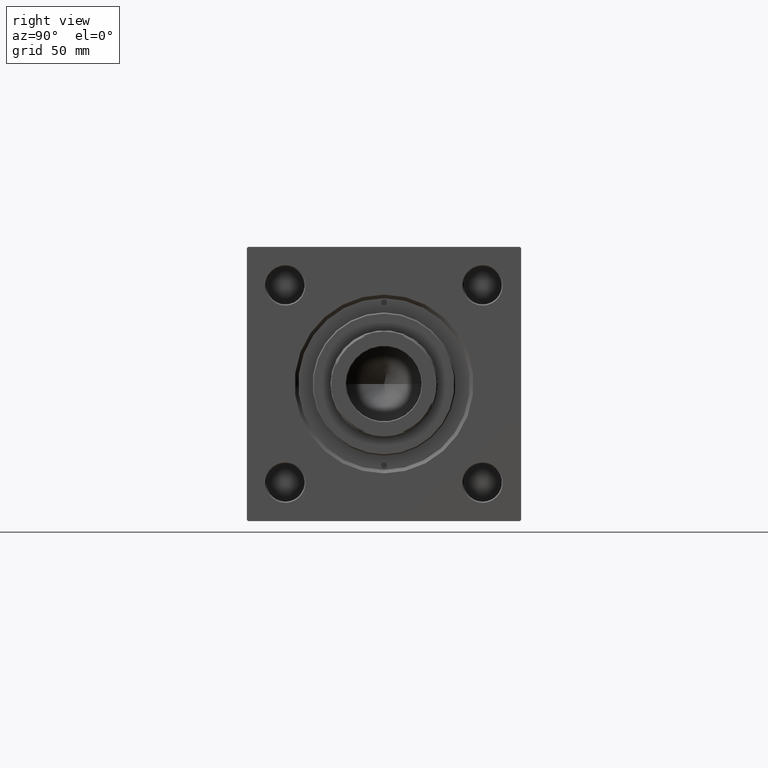
[diagram: clean part render]
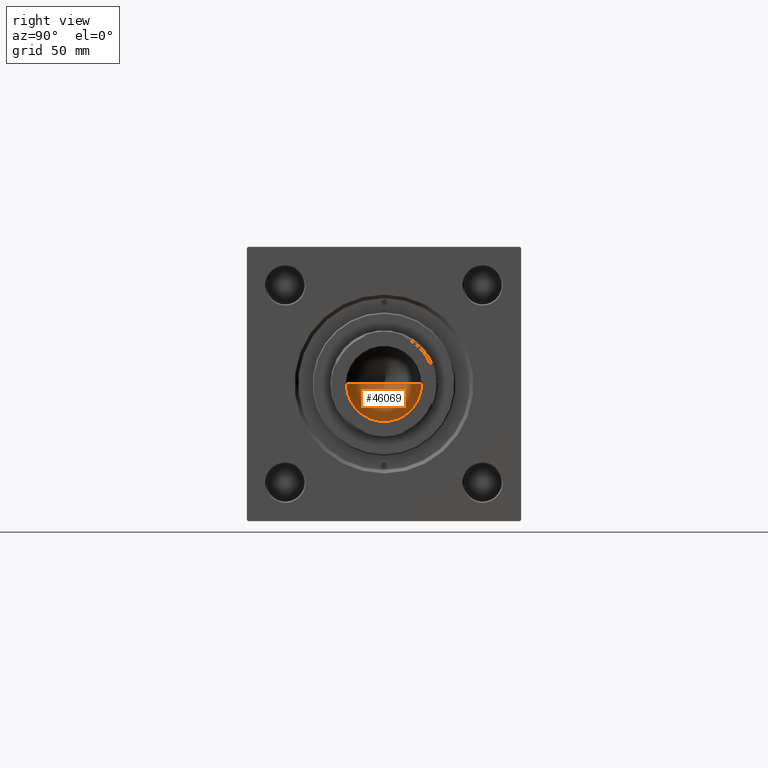
[diagram: same view with one face highlighted and labeled with its STEP entity id]
A machine part, right view. The second image highlights one B-rep face of the part: STEP entity #46069.
In plain terms, the highlighted conical surface has half-angle 59 deg.
Its self-contained STEP definition (entity closure, byte-faithful):
#2162 = VECTOR ( 'NONE', #16767, 1000.000000000000000 ) ;
#2273 = AXIS2_PLACEMENT_3D ( 'NONE', #5664, #40864, #14132 ) ;
#3075 = VERTEX_POINT ( 'NONE', #17841 ) ;
#3592 = LINE ( 'NONE', #19263, #22556 ) ;
#3949 = EDGE_LOOP ( 'NONE', ( #46624, #39501, #32780 ) ) ;
#5664 = CARTESIAN_POINT ( 'NONE',  ( 0.000000000000000000, 0.000000000000000000, 141.0000000000000000 ) ) ;
#5713 = DIRECTION ( 'NONE',  ( 1.000000000000000000, 0.000000000000000000, 0.000000000000000000 ) ) ;
#9569 = CARTESIAN_POINT ( 'NONE',  ( 0.000000000000000000, 0.000000000000000000, 141.0000000000000000 ) ) ;
#11615 = EDGE_CURVE ( 'NONE', #24505, #3075, #30172, .T. ) ;
#11632 = AXIS2_PLACEMENT_3D ( 'NONE', #9569, #17014, #5713 ) ;
#14132 = DIRECTION ( 'NONE',  ( 1.000000000000000000, 0.000000000000000000, 0.000000000000000000 ) ) ;
#16537 = CONICAL_SURFACE ( 'NONE', #11632, 15.74999999999998934, 1.029744258676652313 ) ;
#16767 = DIRECTION ( 'NONE',  ( 0.8571673007021112234, 0.000000000000000000, 0.5150380749100560429 ) ) ;
#17014 = DIRECTION ( 'NONE',  ( -0.000000000000000000, -0.000000000000000000, 1.000000000000000000 ) ) ;
#17334 = VERTEX_POINT ( 'NONE', #29067 ) ;
#17841 = CARTESIAN_POINT ( 'NONE',  ( -15.74999999999998934, 1.928818708657080161E-15, 141.0000000000000000 ) ) ;
#18049 = FACE_OUTER_BOUND ( 'NONE', #3949, .T. ) ;
#19263 = CARTESIAN_POINT ( 'NONE',  ( -15.74999999999998934, 1.928818708657080161E-15, 141.0000000000000000 ) ) ;
#19853 = LINE ( 'NONE', #23724, #2162 ) ;
#20727 = CARTESIAN_POINT ( 'NONE',  ( 15.74999999999998934, 0.000000000000000000, 141.0000000000000000 ) ) ;
#22556 = VECTOR ( 'NONE', #27226, 1000.000000000000000 ) ;
#23724 = CARTESIAN_POINT ( 'NONE',  ( 15.74999999999998934, 0.000000000000000000, 141.0000000000000000 ) ) ;
#24505 = VERTEX_POINT ( 'NONE', #20727 ) ;
#27226 = DIRECTION ( 'NONE',  ( -0.8571673007021112234, 1.049727191138617340E-16, 0.5150380749100560429 ) ) ;
#28494 = EDGE_CURVE ( 'NONE', #17334, #3075, #3592, .T. ) ;
#29067 = CARTESIAN_POINT ( 'NONE',  ( -1.584115414415908206E-14, 0.000000000000000000, 131.5364452503159214 ) ) ;
#30172 = CIRCLE ( 'NONE', #2273, 15.74999999999998934 ) ;
#32413 = EDGE_CURVE ( 'NONE', #17334, #24505, #19853, .T. ) ;
#32780 = ORIENTED_EDGE ( 'NONE', *, *, #11615, .T. ) ;
#39501 = ORIENTED_EDGE ( 'NONE', *, *, #32413, .T. ) ;
#40864 = DIRECTION ( 'NONE',  ( -0.000000000000000000, -0.000000000000000000, 1.000000000000000000 ) ) ;
#46069 = ADVANCED_FACE ( 'NONE', ( #18049 ), #16537, .F. ) ;
#46624 = ORIENTED_EDGE ( 'NONE', *, *, #28494, .F. ) ;